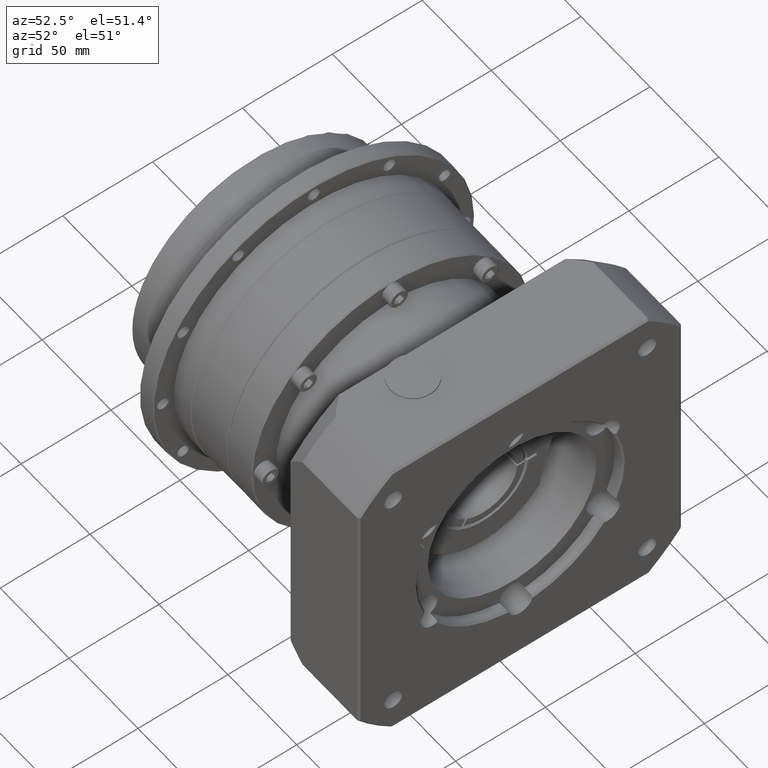
[diagram: clean part render]
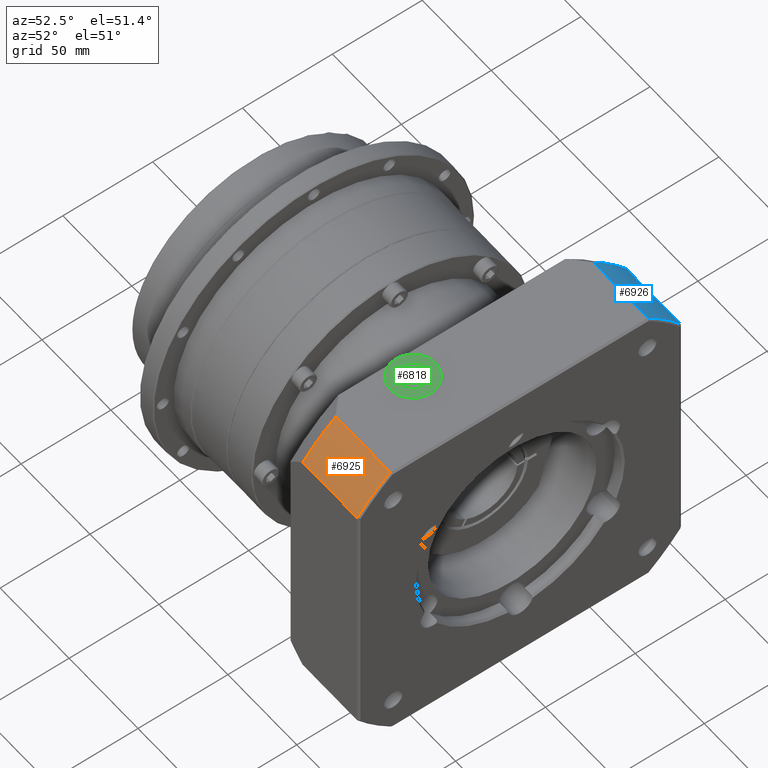
[diagram: same view with three faces highlighted in distinct colors, each labeled with its STEP entity id]
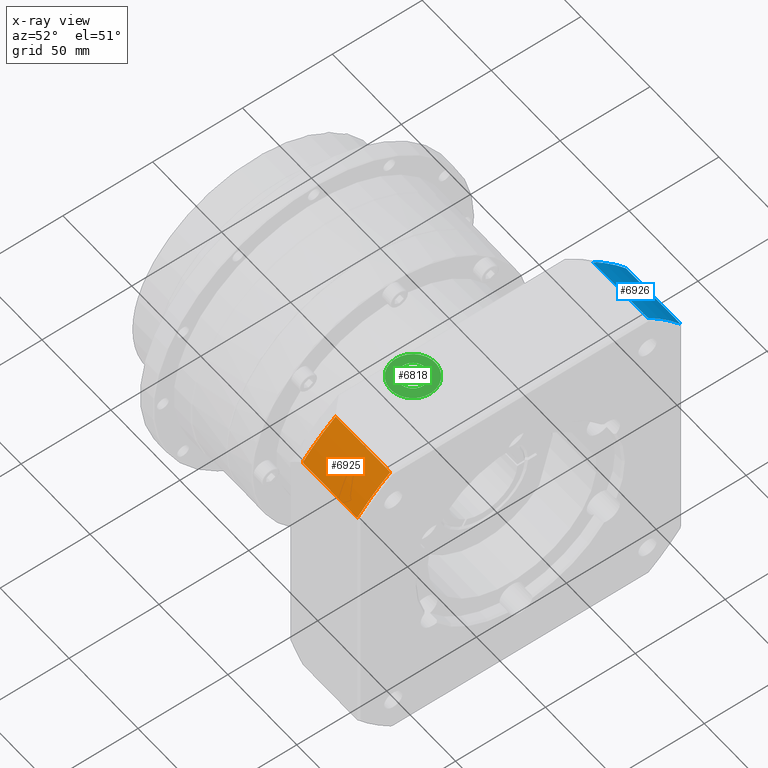
[diagram: x-ray of the same camera — body ghosted, the three highlighted faces saturated]
A machine part, auxiliary view with three faces highlighted in distinct colors.
The next image is the same camera in x-ray (body ghosted, the three faces saturated) — at least one of them is partly hidden behind the body in this view.
Their STEP definitions:

[orange] entity #6925 — the highlighted cylindrical surface (partial cylindrical patch) has radius 115 mm, axis along (-1, -0, -0).
#250=LINE('',#11093,#533);
#255=LINE('',#11108,#538);
#533=VECTOR('',#8729,39.6217782649107);
#538=VECTOR('',#8744,39.6217782649107);
#1303=CYLINDRICAL_SURFACE('',#7601,115.);
#1871=FACE_OUTER_BOUND('',#2445,.T.);
#2445=EDGE_LOOP('',(#5467,#5468,#5469,#5470));
#3108=CIRCLE('',#7523,115.);
#3156=CIRCLE('',#7599,115.);
#3595=VERTEX_POINT('',#11090);
#3596=VERTEX_POINT('',#11092);
#3598=VERTEX_POINT('',#11098);
#3601=VERTEX_POINT('',#11106);
#4289=EDGE_CURVE('',#3595,#3596,#250,.T.);
#4293=EDGE_CURVE('',#3595,#3598,#3108,.T.);
#4297=EDGE_CURVE('',#3601,#3598,#255,.T.);
#4381=EDGE_CURVE('',#3596,#3601,#3156,.T.);
#5467=ORIENTED_EDGE('',*,*,#4381,.F.);
#5468=ORIENTED_EDGE('',*,*,#4289,.F.);
#5469=ORIENTED_EDGE('',*,*,#4293,.T.);
#5470=ORIENTED_EDGE('',*,*,#4297,.F.);
#6925=ADVANCED_FACE('',(#1871),#1303,.T.);
#7523=AXIS2_PLACEMENT_3D('',#11100,#8736,#8737);
#7599=AXIS2_PLACEMENT_3D('',#11338,#8909,#8910);
#7601=AXIS2_PLACEMENT_3D('',#11344,#8913,#8914);
#8729=DIRECTION('',(1.,1.1547538385897E-15,2.76291701760916E-15));
#8736=DIRECTION('center_axis',(1.,1.1547538385897E-15,2.76291701760916E-15));
#8737=DIRECTION('ref_axis',(2.76291701760916E-15,1.23699614282294E-16,-1.));
#8744=DIRECTION('',(-1.,-1.1547538385897E-15,-2.76291701760916E-15));
#8909=DIRECTION('center_axis',(1.,1.1547538385897E-15,2.76291701760916E-15));
#8910=DIRECTION('ref_axis',(-2.76291701760916E-15,-1.23699614282294E-16,
1.));
#8913=DIRECTION('center_axis',(-1.,-1.1547538385897E-15,-2.76291701760916E-15));
#8914=DIRECTION('ref_axis',(2.76291701760916E-15,1.23699614282294E-16,-1.));
#11090=CARTESIAN_POINT('',(-69.6075283268145,36.7072464964172,52.3183925223698));
#11092=CARTESIAN_POINT('',(-29.9857500619038,36.7072464964172,52.3183925223699));
#11093=CARTESIAN_POINT('',(-28.9857500619038,36.7072464964172,52.3183925223699));
#11098=CARTESIAN_POINT('',(-69.6075283268144,18.2963518127989,33.9074978387515));
#11100=CARTESIAN_POINT('Origin',(-69.6075283268143,108.296351812799,-37.6816074776302));
#11106=CARTESIAN_POINT('',(-29.9857500619037,18.296351812799,33.9074978387517));
#11108=CARTESIAN_POINT('',(-28.9857500619037,18.296351812799,33.9074978387517));
#11338=CARTESIAN_POINT('Origin',(-29.9857500619036,108.296351812799,-37.6816074776301));
#11344=CARTESIAN_POINT('Origin',(-28.9857500619036,108.296351812799,-37.6816074776301));

[blue] entity #6926 — the highlighted cylindrical surface (partial cylindrical patch) has radius 115 mm, axis along (-1, -0, -0).
#252=LINE('',#11096,#535);
#274=LINE('',#11346,#557);
#535=VECTOR('',#8731,39.6217782649107);
#557=VECTOR('',#8917,39.6217782649107);
#1304=CYLINDRICAL_SURFACE('',#7602,115.);
#1872=FACE_OUTER_BOUND('',#2446,.T.);
#2446=EDGE_LOOP('',(#5471,#5472,#5473,#5474));
#3104=CIRCLE('',#7517,115.);
#3153=CIRCLE('',#7590,115.);
#3593=VERTEX_POINT('',#11084);
#3594=VERTEX_POINT('',#11086);
#3597=VERTEX_POINT('',#11094);
#3660=VERTEX_POINT('',#11295);
#4286=EDGE_CURVE('',#3594,#3593,#3104,.T.);
#4291=EDGE_CURVE('',#3597,#3593,#252,.T.);
#4370=EDGE_CURVE('',#3660,#3597,#3153,.T.);
#4383=EDGE_CURVE('',#3594,#3660,#274,.T.);
#5471=ORIENTED_EDGE('',*,*,#4370,.F.);
#5472=ORIENTED_EDGE('',*,*,#4383,.F.);
#5473=ORIENTED_EDGE('',*,*,#4286,.T.);
#5474=ORIENTED_EDGE('',*,*,#4291,.F.);
#6926=ADVANCED_FACE('',(#1872),#1304,.T.);
#7517=AXIS2_PLACEMENT_3D('',#11087,#8721,#8722);
#7590=AXIS2_PLACEMENT_3D('',#11300,#8889,#8890);
#7602=AXIS2_PLACEMENT_3D('',#11345,#8915,#8916);
#8721=DIRECTION('center_axis',(1.,1.1547538385897E-15,2.76291701760916E-15));
#8722=DIRECTION('ref_axis',(2.76291701760916E-15,1.23699614282294E-16,-1.));
#8731=DIRECTION('',(-1.,-1.1547538385897E-15,-2.76291701760916E-15));
#8889=DIRECTION('center_axis',(1.,1.1547538385897E-15,2.76291701760916E-15));
#8890=DIRECTION('ref_axis',(-2.76291701760916E-15,-1.23699614282294E-16,
1.));
#8915=DIRECTION('center_axis',(-1.,-1.1547538385897E-15,-2.76291701760916E-15));
#8916=DIRECTION('ref_axis',(2.76291701760916E-15,1.23699614282294E-16,-1.));
#8917=DIRECTION('',(1.,1.1547538385897E-15,2.76291701760916E-15));
#11084=CARTESIAN_POINT('',(-69.6075283268146,179.885457129181,52.3183925223698));
#11086=CARTESIAN_POINT('',(-69.6075283268146,198.296351812799,33.9074978387516));
#11087=CARTESIAN_POINT('Origin',(-69.6075283268143,108.296351812799,-37.6816074776302));
#11094=CARTESIAN_POINT('',(-29.9857500619039,179.885457129181,52.31839252237));
#11096=CARTESIAN_POINT('',(-28.9857500619039,179.885457129181,52.31839252237));
#11295=CARTESIAN_POINT('',(-29.9857500619039,198.296351812799,33.9074978387517));
#11300=CARTESIAN_POINT('Origin',(-29.9857500619036,108.296351812799,-37.6816074776301));
#11345=CARTESIAN_POINT('Origin',(-28.9857500619036,108.296351812799,-37.6816074776301));
#11346=CARTESIAN_POINT('',(-28.9857500619039,198.296351812799,33.9074978387517));

[green] entity #6818 — the highlighted conical surface has half-angle 86.73 deg.
#1189=CONICAL_SURFACE('',#7408,9.875,86.7295120768165);
#1451=FACE_BOUND('',#2300,.T.);
#1764=FACE_OUTER_BOUND('',#2299,.T.);
#2299=EDGE_LOOP('',(#4993));
#2300=EDGE_LOOP('',(#4994));
#3070=CIRCLE('',#7407,7.25);
#3071=CIRCLE('',#7409,12.5);
#3472=VERTEX_POINT('',#10520);
#3473=VERTEX_POINT('',#10523);
#4118=EDGE_CURVE('',#3472,#3472,#3070,.T.);
#4119=EDGE_CURVE('',#3473,#3473,#3071,.T.);
#4993=ORIENTED_EDGE('',*,*,#4118,.T.);
#4994=ORIENTED_EDGE('',*,*,#4119,.F.);
#6818=ADVANCED_FACE('',(#1764,#1451),#1189,.T.);
#7407=AXIS2_PLACEMENT_3D('',#10521,#8419,#8420);
#7408=AXIS2_PLACEMENT_3D('',#10522,#8421,#8422);
#7409=AXIS2_PLACEMENT_3D('',#10524,#8423,#8424);
#8419=DIRECTION('center_axis',(2.72269155243866E-15,6.54586531491444E-16,
-1.));
#8420=DIRECTION('ref_axis',(0.505772653208196,-0.862666808951603,8.12372856040021E-16));
#8421=DIRECTION('center_axis',(2.72269155243866E-15,6.54586531491444E-16,
-1.));
#8422=DIRECTION('ref_axis',(-0.862666808951603,-0.505772653208196,-2.65905682582094E-15));
#8423=DIRECTION('center_axis',(2.72269155243866E-15,6.54586531491444E-16,
-1.));
#8424=DIRECTION('ref_axis',(0.505772653208196,-0.862666808951603,8.12372856040021E-16));
#10520=CARTESIAN_POINT('',(-72.7400844268028,73.6295000770398,53.3183925223695));
#10521=CARTESIAN_POINT('Origin',(-66.4857500619037,77.2963518127992,53.3183925223695));
#10522=CARTESIAN_POINT('Origin',(-66.4857500619037,77.2963518127992,53.1683925223695));
#10523=CARTESIAN_POINT('',(-77.2690851737988,70.9741936476968,53.0183925223694));
#10524=CARTESIAN_POINT('Origin',(-66.4857500619037,77.2963518127992,53.0183925223695));